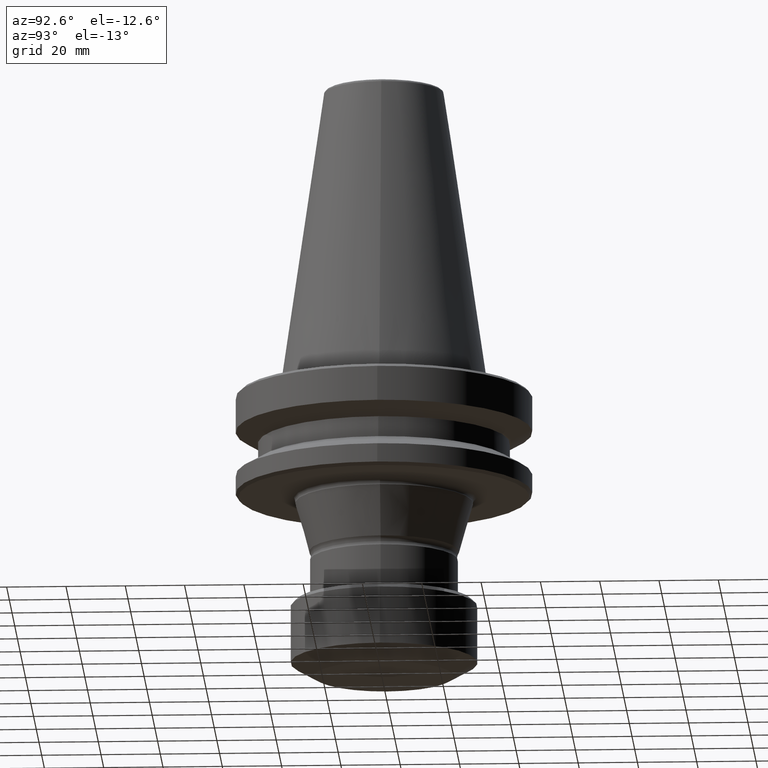
[diagram: clean part render]
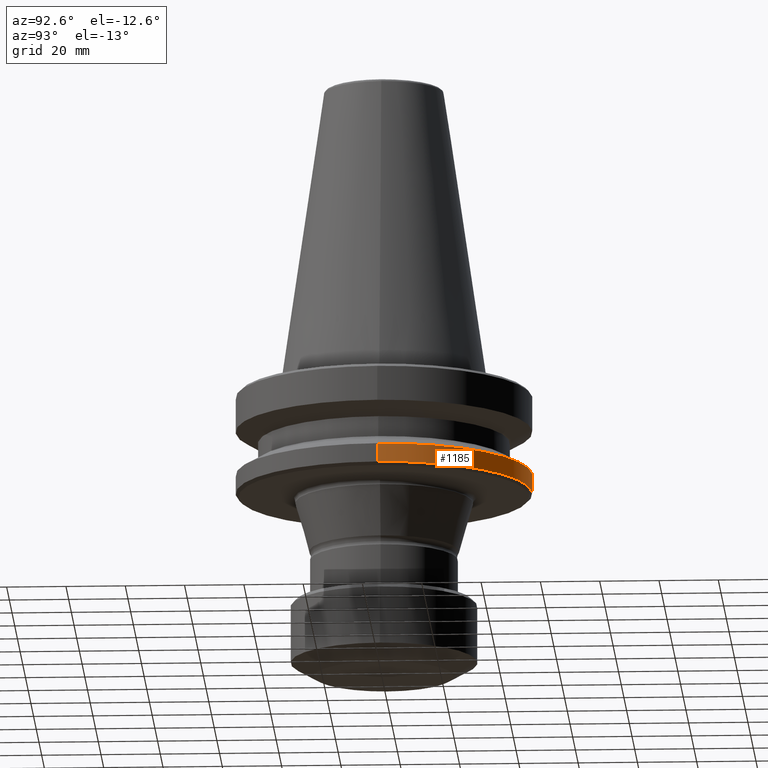
[diagram: same view with one face highlighted and labeled with its STEP entity id]
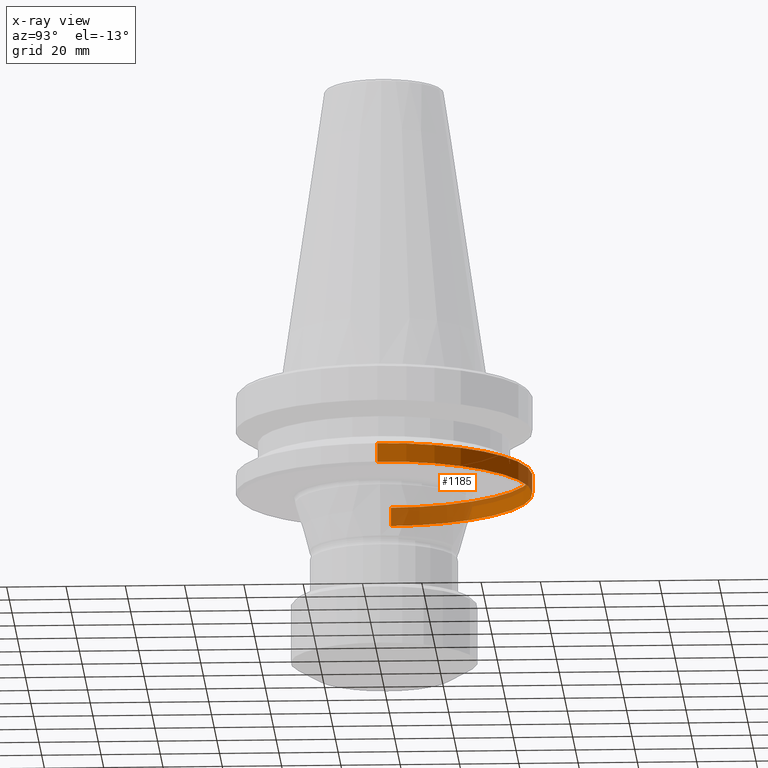
[diagram: x-ray of the same camera — body ghosted, the highlighted face saturated]
A machine part, auxiliary view. The second image highlights one B-rep face of the part: STEP entity #1185.
The next image is the same camera in x-ray: the body ghosted, the highlighted face saturated — about 32% of this face is hidden behind the body in this view.
In plain terms, the highlighted cylindrical surface (partial cylindrical patch) has radius 50 mm, axis along (-0, -0, 1).
Its self-contained STEP definition (entity closure, byte-faithful):
#3 = DIRECTION ( 'NONE',  ( -0.0000000000000000000, -0.0000000000000000000, 1.000000000000000000 ) ) ;
#46 = ORIENTED_EDGE ( 'NONE', *, *, #638, .F. ) ;
#48 = LINE ( 'NONE', #135, #552 ) ;
#102 = DIRECTION ( 'NONE',  ( 1.000000000000000000, 0.0000000000000000000, 0.0000000000000000000 ) ) ;
#119 = LINE ( 'NONE', #450, #831 ) ;
#135 = CARTESIAN_POINT ( 'NONE',  ( -49.99999999999993600, 6.123233995736758200E-015, 117.7912044257657300 ) ) ;
#136 = EDGE_CURVE ( 'NONE', #1204, #399, #1081, .T. ) ;
#146 = CARTESIAN_POINT ( 'NONE',  ( 0.0000000000000000000, 0.0000000000000000000, -37.00000000000182600 ) ) ;
#155 = AXIS2_PLACEMENT_3D ( 'NONE', #387, #764, #102 ) ;
#189 = ORIENTED_EDGE ( 'NONE', *, *, #364, .T. ) ;
#226 = CIRCLE ( 'NONE', #1248, 49.99999999999993600 ) ;
#364 = EDGE_CURVE ( 'NONE', #489, #399, #48, .T. ) ;
#376 = DIRECTION ( 'NONE',  ( 1.000000000000000000, 0.0000000000000000000, 0.0000000000000000000 ) ) ;
#387 = CARTESIAN_POINT ( 'NONE',  ( 0.0000000000000000000, 0.0000000000000000000, -30.69977999677488300 ) ) ;
#399 = VERTEX_POINT ( 'NONE', #1246 ) ;
#450 = CARTESIAN_POINT ( 'NONE',  ( 49.99999999999993600, 0.0000000000000000000, 117.7912044257657300 ) ) ;
#489 = VERTEX_POINT ( 'NONE', #769 ) ;
#500 = EDGE_LOOP ( 'NONE', ( #1273, #189, #1235, #46 ) ) ;
#508 = CARTESIAN_POINT ( 'NONE',  ( 49.99999999999993600, 0.0000000000000000000, -37.00000000000182600 ) ) ;
#552 = VECTOR ( 'NONE', #3, 1000.000000000000000 ) ;
#631 = EDGE_CURVE ( 'NONE', #756, #489, #226, .T. ) ;
#638 = EDGE_CURVE ( 'NONE', #756, #1204, #119, .T. ) ;
#667 = CARTESIAN_POINT ( 'NONE',  ( 49.99999999999993600, 0.0000000000000000000, -30.69977999677488300 ) ) ;
#717 = DIRECTION ( 'NONE',  ( -0.0000000000000000000, -0.0000000000000000000, 1.000000000000000000 ) ) ;
#756 = VERTEX_POINT ( 'NONE', #508 ) ;
#764 = DIRECTION ( 'NONE',  ( -0.0000000000000000000, -0.0000000000000000000, 1.000000000000000000 ) ) ;
#769 = CARTESIAN_POINT ( 'NONE',  ( -49.99999999999993600, 6.123233995736758200E-015, -37.00000000000182600 ) ) ;
#831 = VECTOR ( 'NONE', #1252, 1000.000000000000000 ) ;
#868 = DIRECTION ( 'NONE',  ( 1.000000000000000000, 0.0000000000000000000, 0.0000000000000000000 ) ) ;
#1023 = AXIS2_PLACEMENT_3D ( 'NONE', #1312, #717, #868 ) ;
#1060 = FACE_OUTER_BOUND ( 'NONE', #500, .T. ) ;
#1081 = CIRCLE ( 'NONE', #155, 49.99999999999993600 ) ;
#1121 = CYLINDRICAL_SURFACE ( 'NONE', #1023, 49.99999999999993600 ) ;
#1159 = DIRECTION ( 'NONE',  ( -0.0000000000000000000, -0.0000000000000000000, 1.000000000000000000 ) ) ;
#1185 = ADVANCED_FACE ( 'NONE', ( #1060 ), #1121, .T. ) ;
#1204 = VERTEX_POINT ( 'NONE', #667 ) ;
#1235 = ORIENTED_EDGE ( 'NONE', *, *, #136, .F. ) ;
#1246 = CARTESIAN_POINT ( 'NONE',  ( -49.99999999999993600, 6.123233995736758200E-015, -30.69977999677488300 ) ) ;
#1248 = AXIS2_PLACEMENT_3D ( 'NONE', #146, #1159, #376 ) ;
#1252 = DIRECTION ( 'NONE',  ( -0.0000000000000000000, -0.0000000000000000000, 1.000000000000000000 ) ) ;
#1273 = ORIENTED_EDGE ( 'NONE', *, *, #631, .T. ) ;
#1312 = CARTESIAN_POINT ( 'NONE',  ( 0.0000000000000000000, 0.0000000000000000000, 117.7912044257657300 ) ) ;